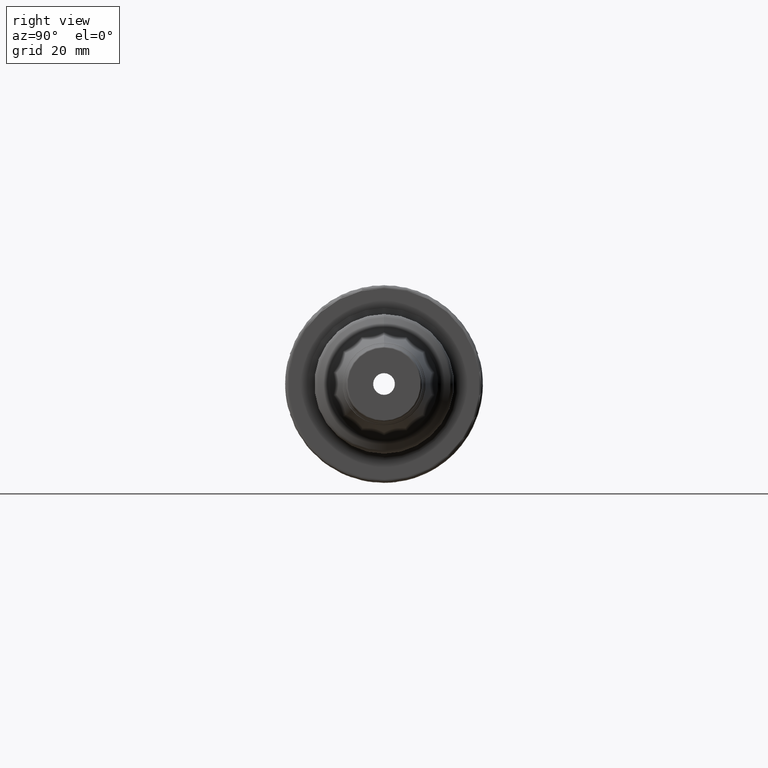
[diagram: clean part render]
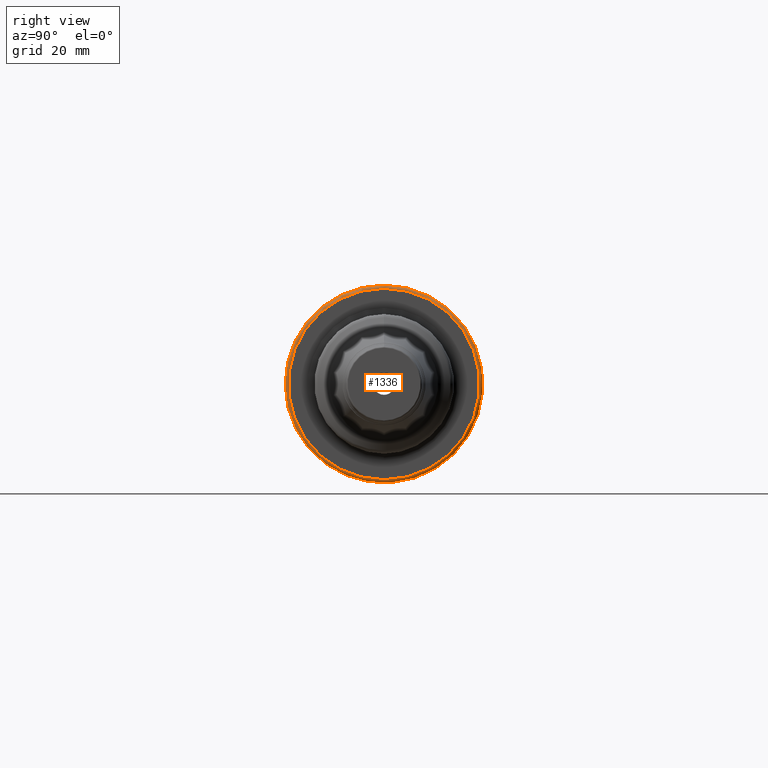
[diagram: same view with one face highlighted and labeled with its STEP entity id]
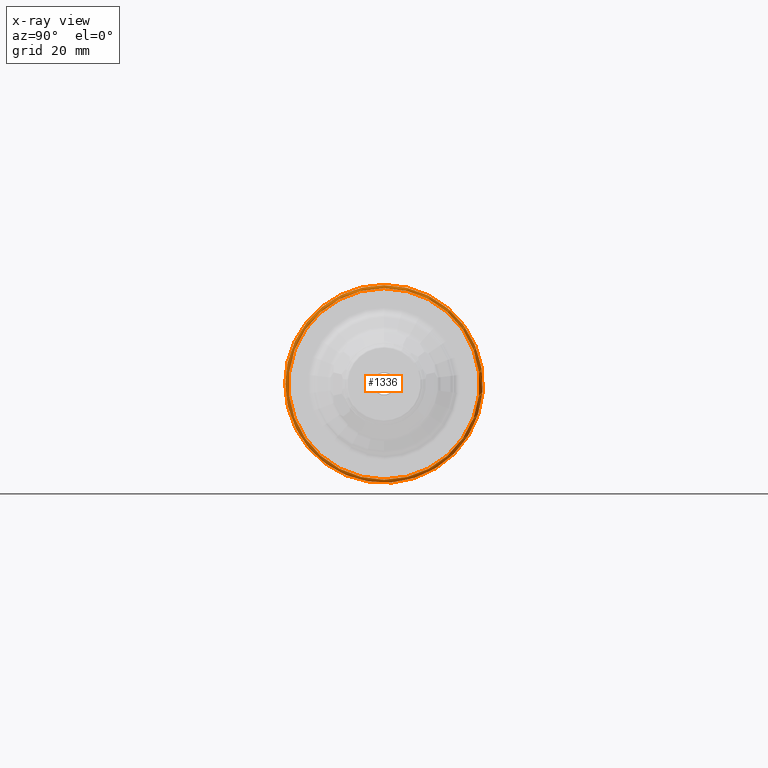
[diagram: x-ray of the same camera — body ghosted, the highlighted face saturated]
A machine part, right view. The second image highlights one B-rep face of the part: STEP entity #1336.
The next image is the same camera in x-ray: the body ghosted, the highlighted face saturated — about 0% of this face is hidden behind the body in this view.
In plain terms, the highlighted toroidal blend (fillet) surface has major radius 30.5 mm and minor (blend) radius 1 mm.
Its self-contained STEP definition (entity closure, byte-faithful):
#332=FACE_OUTER_BOUND('',#419,.T.);
#419=EDGE_LOOP('',(#1194,#1195,#1196,#1197,#1198));
#471=CIRCLE('',#1434,30.5);
#480=CIRCLE('',#1451,31.5);
#483=CIRCLE('',#1454,31.5);
#511=CIRCLE('',#1519,1.00000000000001);
#554=VERTEX_POINT('',#2073);
#568=VERTEX_POINT('',#2193);
#569=VERTEX_POINT('',#2194);
#699=EDGE_CURVE('',#554,#554,#471,.T.);
#718=EDGE_CURVE('',#568,#569,#480,.T.);
#723=EDGE_CURVE('',#569,#568,#483,.T.);
#826=EDGE_CURVE('',#554,#569,#511,.T.);
#1194=ORIENTED_EDGE('',*,*,#699,.F.);
#1195=ORIENTED_EDGE('',*,*,#826,.T.);
#1196=ORIENTED_EDGE('',*,*,#723,.T.);
#1197=ORIENTED_EDGE('',*,*,#718,.T.);
#1198=ORIENTED_EDGE('',*,*,#826,.F.);
#1261=TOROIDAL_SURFACE('',#1518,30.5,1.00000000000001);
#1336=ADVANCED_FACE('',(#332),#1261,.T.);
#1434=AXIS2_PLACEMENT_3D('',#2074,#1686,#1687);
#1451=AXIS2_PLACEMENT_3D('',#2195,#1725,#1726);
#1454=AXIS2_PLACEMENT_3D('',#2210,#1732,#1733);
#1518=AXIS2_PLACEMENT_3D('',#2582,#1908,#1909);
#1519=AXIS2_PLACEMENT_3D('',#2583,#1910,#1911);
#1686=DIRECTION('center_axis',(1.,0.,0.));
#1687=DIRECTION('ref_axis',(0.,0.,-1.));
#1725=DIRECTION('center_axis',(1.,0.,0.));
#1726=DIRECTION('ref_axis',(0.,0.,-1.));
#1732=DIRECTION('center_axis',(1.,0.,0.));
#1733=DIRECTION('ref_axis',(0.,0.,-1.));
#1908=DIRECTION('center_axis',(1.,0.,0.));
#1909=DIRECTION('ref_axis',(0.,0.,-1.));
#1910=DIRECTION('center_axis',(0.,-1.,-1.22464679914735E-16));
#1911=DIRECTION('ref_axis',(0.,-1.22464679914735E-16,1.));
#2073=CARTESIAN_POINT('',(27.,-3.73517273739943E-15,30.5));
#2074=CARTESIAN_POINT('Origin',(27.,0.,0.));
#2193=CARTESIAN_POINT('',(26.,-31.5,-3.85763741731417E-15));
#2194=CARTESIAN_POINT('',(26.,-3.85763741731416E-15,31.5));
#2195=CARTESIAN_POINT('Origin',(26.,0.,0.));
#2210=CARTESIAN_POINT('Origin',(26.,0.,0.));
#2582=CARTESIAN_POINT('Origin',(26.,0.,0.));
#2583=CARTESIAN_POINT('Origin',(26.,-3.73517273739943E-15,30.5));